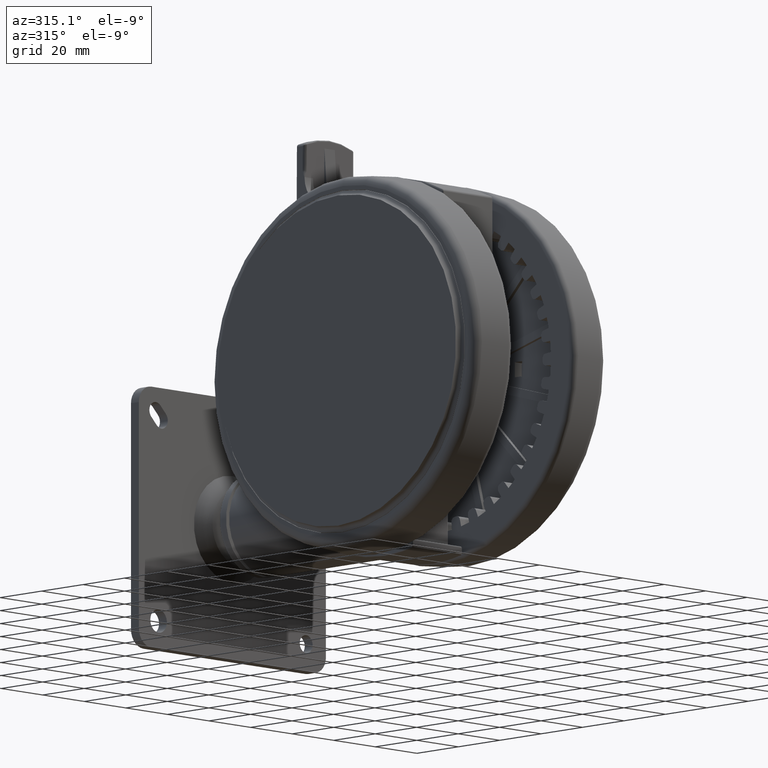
[diagram: clean part render]
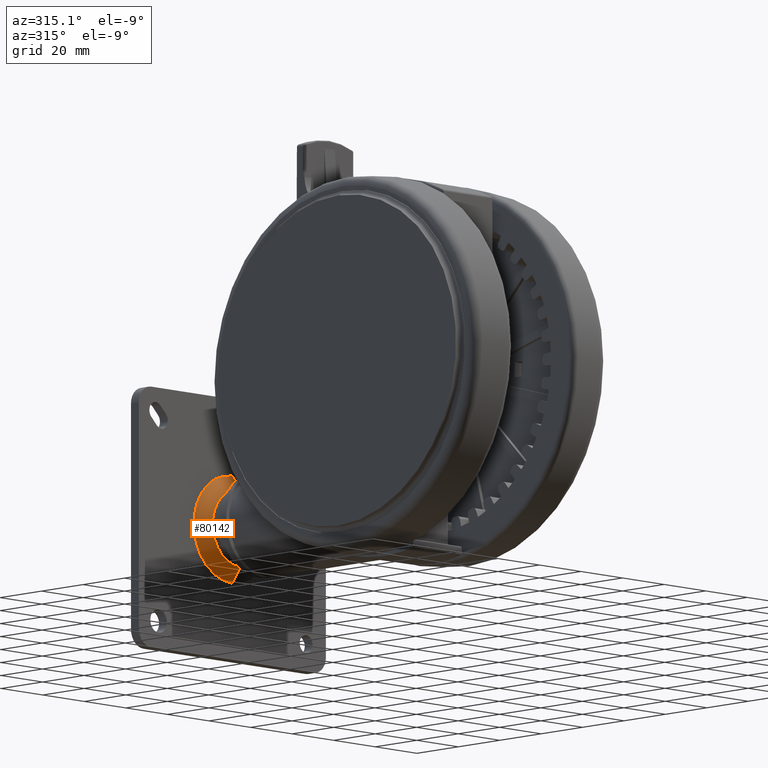
[diagram: same view with one face highlighted and labeled with its STEP entity id]
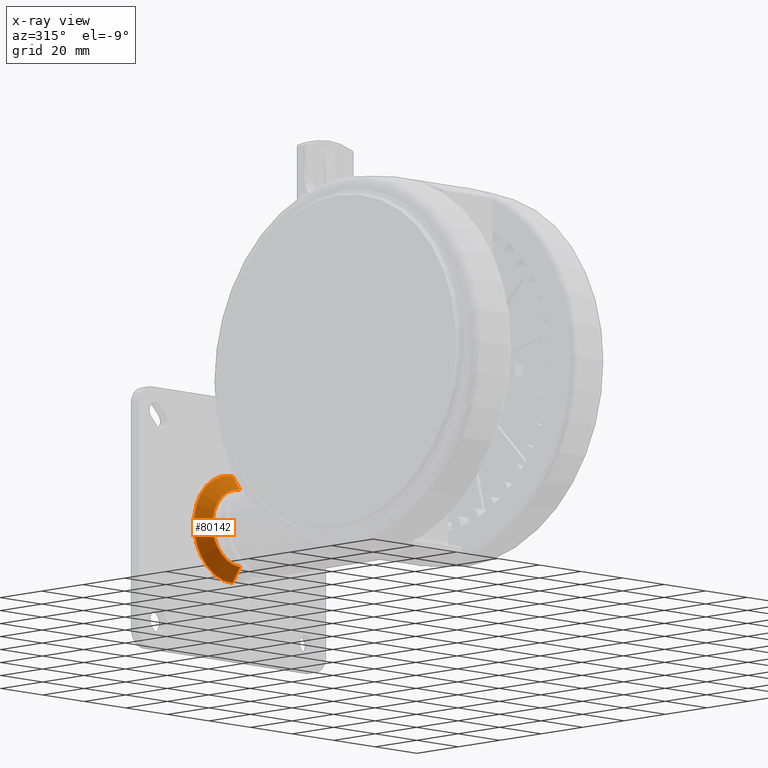
[diagram: x-ray of the same camera — body ghosted, the highlighted face saturated]
A machine part, auxiliary view. The second image highlights one B-rep face of the part: STEP entity #80142.
The next image is the same camera in x-ray: the body ghosted, the highlighted face saturated — about 0% of this face is hidden behind the body in this view.
In plain terms, the highlighted conical surface has half-angle 54.13 deg.
Its self-contained STEP definition (entity closure, byte-faithful):
#3277 = CIRCLE ( 'NONE', #29286, 18.50000000000000000 ) ;
#7832 = ORIENTED_EDGE ( 'NONE', *, *, #34403, .F. ) ;
#11177 = VECTOR ( 'NONE', #37991, 1000.000000000000000 ) ;
#11698 = LINE ( 'NONE', #58075, #28640 ) ;
#14895 = CARTESIAN_POINT ( 'NONE',  ( 44.99999999999992200, 85.20000000000006000, -34.10000000000006500 ) ) ;
#16109 = ORIENTED_EDGE ( 'NONE', *, *, #48898, .T. ) ;
#17007 = AXIS2_PLACEMENT_3D ( 'NONE', #81569, #55977, #37032 ) ;
#19615 = CARTESIAN_POINT ( 'NONE',  ( 45.00000000000001400, 81.44824820963606300, -34.10000000000006500 ) ) ;
#21290 = DIRECTION ( 'NONE',  ( -1.000000000000000000, -3.750753461571474600E-015, 3.750753461571474900E-016 ) ) ;
#21387 = VERTEX_POINT ( 'NONE', #45193 ) ;
#22580 = ORIENTED_EDGE ( 'NONE', *, *, #82643, .T. ) ;
#25150 = CARTESIAN_POINT ( 'NONE',  ( 26.50000000000001400, 85.20000000000006000, -34.10000000000006500 ) ) ;
#26011 = DIRECTION ( 'NONE',  ( -1.000000000000000000, 0.0000000000000000000, 5.212742614358344400E-016 ) ) ;
#28091 = LINE ( 'NONE', #25150, #11177 ) ;
#28640 = VECTOR ( 'NONE', #45294, 1000.000000000000100 ) ;
#29286 = AXIS2_PLACEMENT_3D ( 'NONE', #14895, #59522, #21290 ) ;
#32513 = CARTESIAN_POINT ( 'NONE',  ( 63.50000000000011400, 85.20000000000011700, -34.10000000000007200 ) ) ;
#34403 = EDGE_CURVE ( 'NONE', #21387, #49869, #11698, .T. ) ;
#37032 = DIRECTION ( 'NONE',  ( 1.000000000000000000, 0.0000000000000000000, -3.750753461571474000E-016 ) ) ;
#37991 = DIRECTION ( 'NONE',  ( -0.8103503580728084200, 0.5859456435295609100, 1.256781091662406100E-016 ) ) ;
#43494 = CONICAL_SURFACE ( 'NONE', #17007, 18.50000000000000400, 0.9447498043013715700 ) ;
#45193 = CARTESIAN_POINT ( 'NONE',  ( 58.31140709843271700, 81.44824820963606300, -34.10000000000007200 ) ) ;
#45294 = DIRECTION ( 'NONE',  ( 0.8103503580728080900, 0.5859456435295613600, -2.249174063864175600E-016 ) ) ;
#45504 = FACE_OUTER_BOUND ( 'NONE', #51939, .T. ) ;
#47873 = CIRCLE ( 'NONE', #65251, 13.31140709843269800 ) ;
#48898 = EDGE_CURVE ( 'NONE', #73314, #49869, #3277, .T. ) ;
#49869 = VERTEX_POINT ( 'NONE', #32513 ) ;
#51939 = EDGE_LOOP ( 'NONE', ( #63156, #22580, #16109, #7832 ) ) ;
#55977 = DIRECTION ( 'NONE',  ( -2.292630248676148900E-016, 1.000000000000000000, 6.086410673338458400E-031 ) ) ;
#57930 = CARTESIAN_POINT ( 'NONE',  ( 26.50000000000010700, 85.19999999999998900, -34.10000000000006500 ) ) ;
#58075 = CARTESIAN_POINT ( 'NONE',  ( 63.50000000000001400, 85.20000000000006000, -34.10000000000007200 ) ) ;
#59522 = DIRECTION ( 'NONE',  ( 3.720744363710750200E-015, -1.000000000000000000, -1.577721810442024700E-030 ) ) ;
#63156 = ORIENTED_EDGE ( 'NONE', *, *, #63162, .T. ) ;
#63162 = EDGE_CURVE ( 'NONE', #21387, #64028, #47873, .T. ) ;
#64028 = VERTEX_POINT ( 'NONE', #82078 ) ;
#64213 = DIRECTION ( 'NONE',  ( -2.292630248676148900E-016, 1.000000000000000000, 6.086410673338458400E-031 ) ) ;
#65251 = AXIS2_PLACEMENT_3D ( 'NONE', #19615, #64213, #26011 ) ;
#73314 = VERTEX_POINT ( 'NONE', #57930 ) ;
#80142 = ADVANCED_FACE ( 'NONE', ( #45504 ), #43494, .T. ) ;
#81569 = CARTESIAN_POINT ( 'NONE',  ( 45.00000000000001400, 85.20000000000006000, -34.10000000000006500 ) ) ;
#82078 = CARTESIAN_POINT ( 'NONE',  ( 31.68859290156730800, 81.44824820963606300, -34.10000000000006500 ) ) ;
#82643 = EDGE_CURVE ( 'NONE', #64028, #73314, #28091, .T. ) ;